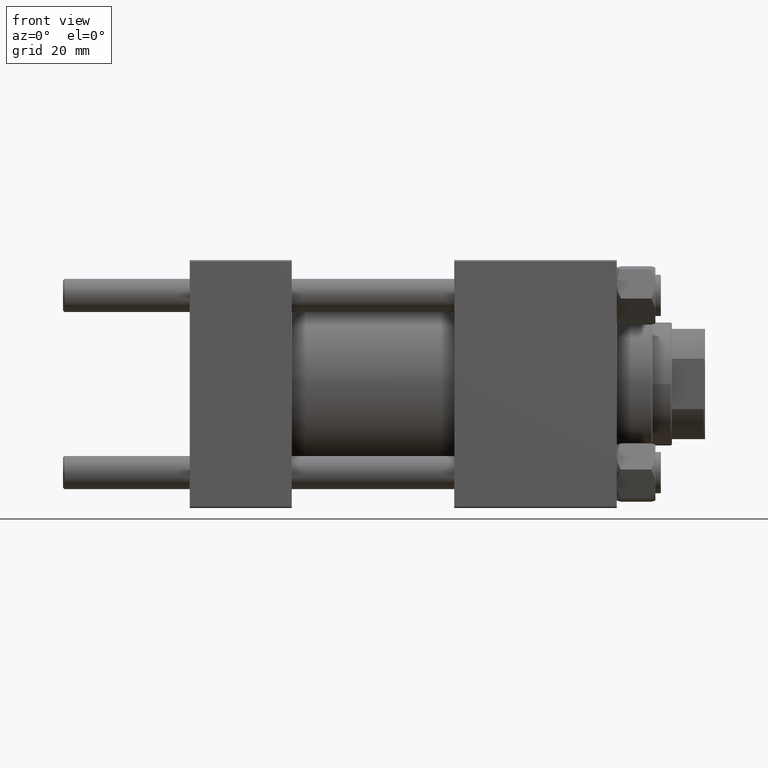
[diagram: clean part render]
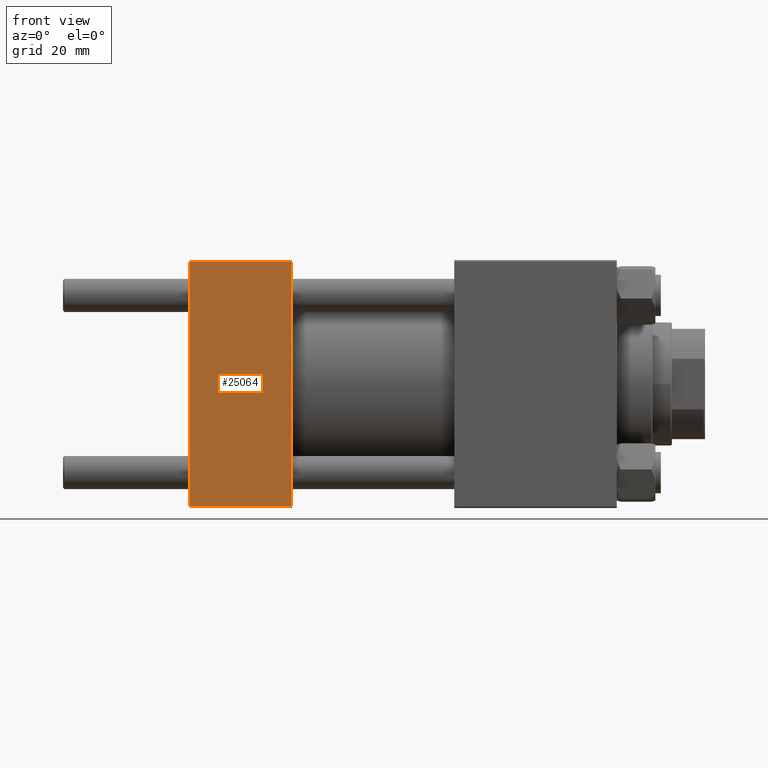
[diagram: same view with one face highlighted and labeled with its STEP entity id]
A machine part, front view. The second image highlights one B-rep face of the part: STEP entity #25064.
In plain terms, the highlighted planar face has unit normal (0, 1, 0).
Its self-contained STEP definition (entity closure, byte-faithful):
#2236 = ORIENTED_EDGE ( 'NONE', *, *, #4999, .T. ) ;
#3352 = CARTESIAN_POINT ( 'NONE',  ( 37.00000000000000000, -45.00000000000000711, 45.00000000000000000 ) ) ;
#4291 = CARTESIAN_POINT ( 'NONE',  ( 0.000000000000000000, -45.00000000000000711, 45.00000000000000000 ) ) ;
#4575 = CARTESIAN_POINT ( 'NONE',  ( 37.00000000000000000, -45.00000000000000711, 44.49999999999997158 ) ) ;
#4999 = EDGE_CURVE ( 'NONE', #46901, #35927, #15027, .T. ) ;
#6276 = DIRECTION ( 'NONE',  ( 0.000000000000000000, 7.709882115452476934E-17, -1.000000000000000000 ) ) ;
#6472 = EDGE_CURVE ( 'NONE', #38426, #19128, #43399, .T. ) ;
#7635 = DIRECTION ( 'NONE',  ( -0.000000000000000000, 1.000000000000000000, 7.709882115452478166E-17 ) ) ;
#8853 = VECTOR ( 'NONE', #15160, 1000.000000000000000 ) ;
#9571 = LINE ( 'NONE', #28768, #19221 ) ;
#10917 = FACE_OUTER_BOUND ( 'NONE', #24307, .T. ) ;
#15027 = LINE ( 'NONE', #30687, #37487 ) ;
#15035 = CARTESIAN_POINT ( 'NONE',  ( 37.00000000000000000, -45.00000000000000000, -44.49999999999995737 ) ) ;
#15160 = DIRECTION ( 'NONE',  ( 0.000000000000000000, 7.709882115452476934E-17, -1.000000000000000000 ) ) ;
#19128 = VERTEX_POINT ( 'NONE', #15035 ) ;
#19221 = VECTOR ( 'NONE', #6276, 1000.000000000000000 ) ;
#24307 = EDGE_LOOP ( 'NONE', ( #33106, #36961, #30282, #2236 ) ) ;
#25064 = ADVANCED_FACE ( 'NONE', ( #10917 ), #27324, .F. ) ;
#26146 = EDGE_CURVE ( 'NONE', #35927, #38426, #49717, .T. ) ;
#26886 = EDGE_CURVE ( 'NONE', #46901, #19128, #9571, .T. ) ;
#27324 = PLANE ( 'NONE',  #40268 ) ;
#28768 = CARTESIAN_POINT ( 'NONE',  ( 37.00000000000000000, -45.00000000000000711, 45.00000000000000000 ) ) ;
#30053 = CARTESIAN_POINT ( 'NONE',  ( 0.000000000000000000, -45.00000000000000000, -44.49999999999995737 ) ) ;
#30282 = ORIENTED_EDGE ( 'NONE', *, *, #26886, .F. ) ;
#30687 = CARTESIAN_POINT ( 'NONE',  ( 37.00000000000000000, -45.00000000000000711, 44.49999999999997158 ) ) ;
#33106 = ORIENTED_EDGE ( 'NONE', *, *, #26146, .T. ) ;
#34948 = DIRECTION ( 'NONE',  ( -1.000000000000000000, 0.000000000000000000, 0.000000000000000000 ) ) ;
#35927 = VERTEX_POINT ( 'NONE', #44510 ) ;
#36961 = ORIENTED_EDGE ( 'NONE', *, *, #6472, .T. ) ;
#37487 = VECTOR ( 'NONE', #34948, 1000.000000000000000 ) ;
#38165 = DIRECTION ( 'NONE',  ( 0.000000000000000000, -7.709882115452478166E-17, 1.000000000000000000 ) ) ;
#38426 = VERTEX_POINT ( 'NONE', #30053 ) ;
#39853 = CARTESIAN_POINT ( 'NONE',  ( 37.00000000000000000, -45.00000000000000000, -44.49999999999998579 ) ) ;
#40268 = AXIS2_PLACEMENT_3D ( 'NONE', #3352, #7635, #38165 ) ;
#43399 = LINE ( 'NONE', #39853, #44630 ) ;
#44144 = DIRECTION ( 'NONE',  ( 1.000000000000000000, 0.000000000000000000, 0.000000000000000000 ) ) ;
#44510 = CARTESIAN_POINT ( 'NONE',  ( 0.000000000000000000, -45.00000000000000711, 44.49999999999997158 ) ) ;
#44630 = VECTOR ( 'NONE', #44144, 1000.000000000000000 ) ;
#46901 = VERTEX_POINT ( 'NONE', #4575 ) ;
#49717 = LINE ( 'NONE', #4291, #8853 ) ;